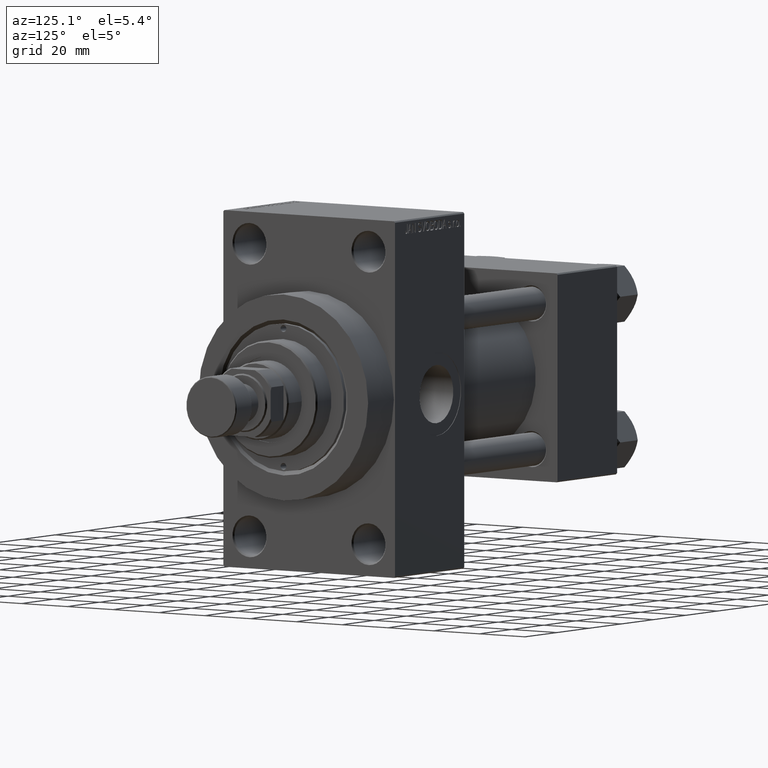
[diagram: clean part render]
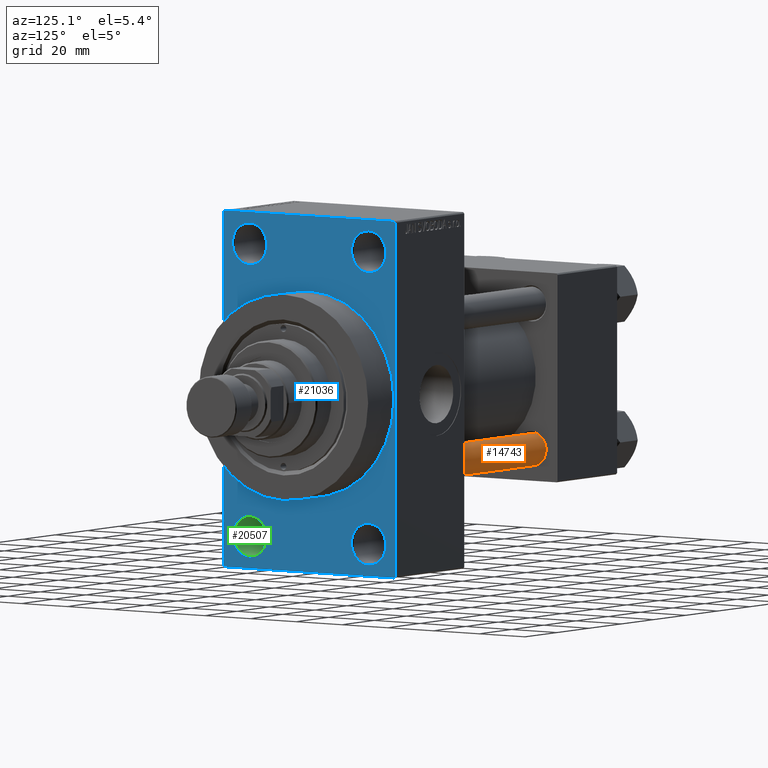
[diagram: same view with three faces highlighted in distinct colors, each labeled with its STEP entity id]
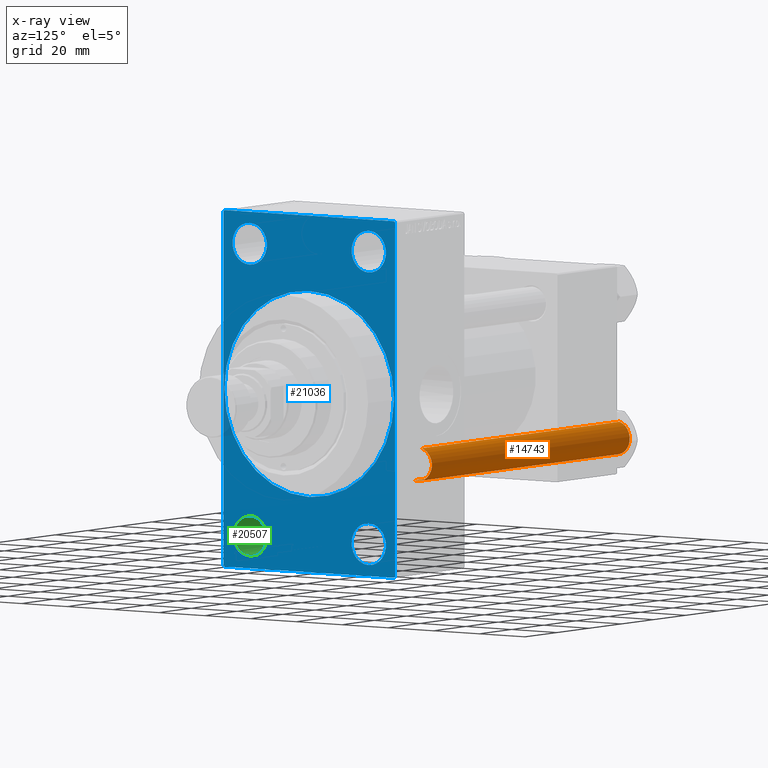
[diagram: x-ray of the same camera — body ghosted, the three highlighted faces saturated]
A machine part, auxiliary view with three faces highlighted in distinct colors.
The next image is the same camera in x-ray (body ghosted, the three faces saturated) — at least one of them is partly hidden behind the body in this view.
Their STEP definitions:

[orange] entity #14743 — the highlighted cylindrical surface (edge-blend (fillet) strip) has radius 6 mm, axis along (1, -0, 0).
#2651 = DIRECTION ( 'NONE',  ( -0.000000000000000000, -0.000000000000000000, -1.000000000000000000 ) ) ;
#3099 = DIRECTION ( 'NONE',  ( 0.000000000000000000, 0.000000000000000000, -1.000000000000000000 ) ) ;
#4222 = ORIENTED_EDGE ( 'NONE', *, *, #5398, .T. ) ;
#5398 = EDGE_CURVE ( 'NONE', #32393, #14427, #6597, .T. ) ;
#5707 = DIRECTION ( 'NONE',  ( -0.000000000000000000, -0.000000000000000000, -1.000000000000000000 ) ) ;
#6521 = LINE ( 'NONE', #10392, #25445 ) ;
#6597 = CIRCLE ( 'NONE', #28241, 6.000000000000000888 ) ;
#8851 = LINE ( 'NONE', #31609, #9837 ) ;
#9225 = AXIS2_PLACEMENT_3D ( 'NONE', #33249, #29840, #33967 ) ;
#9837 = VECTOR ( 'NONE', #5707, 1000.000000000000000 ) ;
#10392 = CARTESIAN_POINT ( 'NONE',  ( 6.000000000000000888, 7.347880794884120722E-16, 124.0000000000000000 ) ) ;
#10416 = EDGE_CURVE ( 'NONE', #32393, #40846, #8851, .T. ) ;
#11178 = DIRECTION ( 'NONE',  ( -0.000000000000000000, -0.000000000000000000, -1.000000000000000000 ) ) ;
#11908 = DIRECTION ( 'NONE',  ( -1.000000000000000000, 0.000000000000000000, 0.000000000000000000 ) ) ;
#12121 = ORIENTED_EDGE ( 'NONE', *, *, #15673, .T. ) ;
#13095 = CIRCLE ( 'NONE', #9225, 6.000000000000000888 ) ;
#13607 = FACE_OUTER_BOUND ( 'NONE', #14537, .T. ) ;
#14329 = CYLINDRICAL_SURFACE ( 'NONE', #33898, 6.000000000000000888 ) ;
#14427 = VERTEX_POINT ( 'NONE', #28691 ) ;
#14537 = EDGE_LOOP ( 'NONE', ( #4222, #39280, #12121, #35155 ) ) ;
#14743 = ADVANCED_FACE ( 'NONE', ( #13607 ), #14329, .T. ) ;
#15673 = EDGE_CURVE ( 'NONE', #45605, #40846, #13095, .T. ) ;
#18332 = CARTESIAN_POINT ( 'NONE',  ( 0.000000000000000000, 0.000000000000000000, 123.5000000000000426 ) ) ;
#21818 = CARTESIAN_POINT ( 'NONE',  ( -6.000000000000000888, 0.000000000000000000, 123.5000000000000426 ) ) ;
#25445 = VECTOR ( 'NONE', #2651, 1000.000000000000000 ) ;
#28241 = AXIS2_PLACEMENT_3D ( 'NONE', #18332, #3099, #33115 ) ;
#28691 = CARTESIAN_POINT ( 'NONE',  ( 6.000000000000000888, 7.347880794884120722E-16, 123.5000000000000426 ) ) ;
#29840 = DIRECTION ( 'NONE',  ( -0.000000000000000000, -0.000000000000000000, 1.000000000000000000 ) ) ;
#30495 = CARTESIAN_POINT ( 'NONE',  ( -6.000000000000000888, 0.000000000000000000, 0.4999999999999865663 ) ) ;
#31609 = CARTESIAN_POINT ( 'NONE',  ( -6.000000000000000888, 0.000000000000000000, 124.0000000000000000 ) ) ;
#32393 = VERTEX_POINT ( 'NONE', #21818 ) ;
#33115 = DIRECTION ( 'NONE',  ( 1.000000000000000000, 0.000000000000000000, 0.000000000000000000 ) ) ;
#33249 = CARTESIAN_POINT ( 'NONE',  ( 0.000000000000000000, 0.000000000000000000, 0.4999999999999865663 ) ) ;
#33898 = AXIS2_PLACEMENT_3D ( 'NONE', #43164, #11178, #11908 ) ;
#33967 = DIRECTION ( 'NONE',  ( 1.000000000000000000, 0.000000000000000000, 0.000000000000000000 ) ) ;
#35155 = ORIENTED_EDGE ( 'NONE', *, *, #10416, .F. ) ;
#35865 = CARTESIAN_POINT ( 'NONE',  ( 6.000000000000000888, 7.347880794884120722E-16, 0.4999999999999865663 ) ) ;
#39280 = ORIENTED_EDGE ( 'NONE', *, *, #39952, .T. ) ;
#39952 = EDGE_CURVE ( 'NONE', #14427, #45605, #6521, .T. ) ;
#40846 = VERTEX_POINT ( 'NONE', #30495 ) ;
#43164 = CARTESIAN_POINT ( 'NONE',  ( 0.000000000000000000, 0.000000000000000000, 124.0000000000000000 ) ) ;
#45605 = VERTEX_POINT ( 'NONE', #35865 ) ;

[blue] entity #21036 — the highlighted planar face has unit normal (-1, 0, 0).
#43 = ORIENTED_EDGE ( 'NONE', *, *, #43870, .F. ) ;
#55 = CIRCLE ( 'NONE', #27113, 7.500000000000007105 ) ;
#160 = CARTESIAN_POINT ( 'NONE',  ( 138.0000000000000000, 37.49999999999999289, -63.50000000000001421 ) ) ;
#870 = CARTESIAN_POINT ( 'NONE',  ( 138.0000000000000000, -25.99999999999999645, -60.00000000000000000 ) ) ;
#897 = DIRECTION ( 'NONE',  ( -0.000000000000000000, -0.7071067811865524577, -0.7071067811865426878 ) ) ;
#1168 = EDGE_LOOP ( 'NONE', ( #29208, #24086 ) ) ;
#1690 = EDGE_CURVE ( 'NONE', #21101, #30888, #15156, .T. ) ;
#1776 = ORIENTED_EDGE ( 'NONE', *, *, #35301, .T. ) ;
#2322 = CARTESIAN_POINT ( 'NONE',  ( 138.0000000000000000, 26.00000000000000000, 52.49999999999999289 ) ) ;
#2425 = VERTEX_POINT ( 'NONE', #43265 ) ;
#2658 = CARTESIAN_POINT ( 'NONE',  ( 138.0000000000000000, 26.00000000000000000, -44.99999999999998579 ) ) ;
#2905 = DIRECTION ( 'NONE',  ( 0.000000000000000000, -1.000000000000000000, -1.850371707708594563E-16 ) ) ;
#2966 = VERTEX_POINT ( 'NONE', #13111 ) ;
#3213 = VECTOR ( 'NONE', #24102, 1000.000000000000000 ) ;
#4489 = DIRECTION ( 'NONE',  ( -1.000000000000000000, 0.000000000000000000, -0.000000000000000000 ) ) ;
#4606 = DIRECTION ( 'NONE',  ( -1.000000000000000000, 0.000000000000000000, -0.000000000000000000 ) ) ;
#4648 = LINE ( 'NONE', #8270, #11572 ) ;
#5148 = VECTOR ( 'NONE', #2905, 1000.000000000000000 ) ;
#6224 = AXIS2_PLACEMENT_3D ( 'NONE', #18016, #10266, #47335 ) ;
#6396 = FACE_BOUND ( 'NONE', #1168, .T. ) ;
#6658 = DIRECTION ( 'NONE',  ( -1.000000000000000000, 0.000000000000000000, -0.000000000000000000 ) ) ;
#6703 = ORIENTED_EDGE ( 'NONE', *, *, #8942, .F. ) ;
#6828 = AXIS2_PLACEMENT_3D ( 'NONE', #9573, #17078, #32103 ) ;
#7229 = ORIENTED_EDGE ( 'NONE', *, *, #41435, .T. ) ;
#7467 = AXIS2_PLACEMENT_3D ( 'NONE', #36324, #26136, #37051 ) ;
#8270 = CARTESIAN_POINT ( 'NONE',  ( 138.0000000000000000, -37.49999999999999289, 63.99999999999997158 ) ) ;
#8298 = VERTEX_POINT ( 'NONE', #23571 ) ;
#8473 = ORIENTED_EDGE ( 'NONE', *, *, #12802, .T. ) ;
#8667 = ORIENTED_EDGE ( 'NONE', *, *, #33722, .T. ) ;
#8814 = EDGE_CURVE ( 'NONE', #47147, #31787, #36081, .T. ) ;
#8942 = EDGE_CURVE ( 'NONE', #22070, #14919, #10568, .T. ) ;
#9419 = DIRECTION ( 'NONE',  ( 0.000000000000000000, 0.000000000000000000, 1.000000000000000000 ) ) ;
#9573 = CARTESIAN_POINT ( 'NONE',  ( 138.0000000000000000, -25.99999999999999645, 52.50000000000000000 ) ) ;
#9894 = DIRECTION ( 'NONE',  ( -1.000000000000000000, 0.000000000000000000, -0.000000000000000000 ) ) ;
#10182 = LINE ( 'NONE', #24958, #13689 ) ;
#10266 = DIRECTION ( 'NONE',  ( -1.000000000000000000, 0.000000000000000000, -0.000000000000000000 ) ) ;
#10568 = CIRCLE ( 'NONE', #7467, 37.00000000000000000 ) ;
#10675 = CARTESIAN_POINT ( 'NONE',  ( 138.0000000000000000, -37.49999999999999289, 63.49999999999994316 ) ) ;
#10746 = VERTEX_POINT ( 'NONE', #2658 ) ;
#10964 = ORIENTED_EDGE ( 'NONE', *, *, #35569, .T. ) ;
#10982 = PLANE ( 'NONE',  #6224 ) ;
#11440 = ORIENTED_EDGE ( 'NONE', *, *, #26428, .T. ) ;
#11523 = DIRECTION ( 'NONE',  ( 0.000000000000000000, -0.7071067811865672237, 0.7071067811865279218 ) ) ;
#11572 = VECTOR ( 'NONE', #37596, 1000.000000000000000 ) ;
#12000 = LINE ( 'NONE', #23138, #3213 ) ;
#12239 = CIRCLE ( 'NONE', #6828, 7.500000000000007105 ) ;
#12622 = DIRECTION ( 'NONE',  ( -1.000000000000000000, 0.000000000000000000, -0.000000000000000000 ) ) ;
#12781 = DIRECTION ( 'NONE',  ( 0.000000000000000000, 0.000000000000000000, 1.000000000000000000 ) ) ;
#12802 = EDGE_CURVE ( 'NONE', #37510, #47925, #42423, .T. ) ;
#12911 = CARTESIAN_POINT ( 'NONE',  ( 138.0000000000000000, -25.99999999999999645, -44.99999999999998579 ) ) ;
#13060 = EDGE_CURVE ( 'NONE', #10746, #17246, #14586, .T. ) ;
#13111 = CARTESIAN_POINT ( 'NONE',  ( 138.0000000000000000, -25.99999999999999645, 60.00000000000000711 ) ) ;
#13161 = VECTOR ( 'NONE', #38341, 1000.000000000000000 ) ;
#13250 = EDGE_CURVE ( 'NONE', #14673, #39648, #25820, .T. ) ;
#13355 = LINE ( 'NONE', #31772, #13161 ) ;
#13689 = VECTOR ( 'NONE', #39751, 999.9999999999998863 ) ;
#13967 = AXIS2_PLACEMENT_3D ( 'NONE', #41658, #23248, #9419 ) ;
#14393 = CARTESIAN_POINT ( 'NONE',  ( 138.0000000000000000, 26.00000000000000000, 44.99999999999998579 ) ) ;
#14586 = CIRCLE ( 'NONE', #33160, 7.500000000000007105 ) ;
#14673 = VERTEX_POINT ( 'NONE', #21113 ) ;
#14919 = VERTEX_POINT ( 'NONE', #38539 ) ;
#15156 = LINE ( 'NONE', #19495, #46695 ) ;
#15312 = VERTEX_POINT ( 'NONE', #36692 ) ;
#16443 = EDGE_CURVE ( 'NONE', #2966, #2425, #12239, .T. ) ;
#16450 = AXIS2_PLACEMENT_3D ( 'NONE', #32675, #9894, #47685 ) ;
#16596 = VERTEX_POINT ( 'NONE', #14393 ) ;
#17078 = DIRECTION ( 'NONE',  ( -1.000000000000000000, 0.000000000000000000, -0.000000000000000000 ) ) ;
#17086 = DIRECTION ( 'NONE',  ( 0.000000000000000000, 0.000000000000000000, 1.000000000000000000 ) ) ;
#17203 = DIRECTION ( 'NONE',  ( 0.000000000000000000, 0.000000000000000000, 1.000000000000000000 ) ) ;
#17246 = VERTEX_POINT ( 'NONE', #40097 ) ;
#18016 = CARTESIAN_POINT ( 'NONE',  ( 138.0000000000000000, 0.000000000000000000, 0.000000000000000000 ) ) ;
#18806 = CARTESIAN_POINT ( 'NONE',  ( 138.0000000000000000, -37.49999999999999289, 63.49999999999994316 ) ) ;
#19029 = ORIENTED_EDGE ( 'NONE', *, *, #13250, .T. ) ;
#19127 = CIRCLE ( 'NONE', #43887, 7.500000000000007105 ) ;
#19483 = DIRECTION ( 'NONE',  ( 0.000000000000000000, 0.000000000000000000, 1.000000000000000000 ) ) ;
#19495 = CARTESIAN_POINT ( 'NONE',  ( 138.0000000000000000, 36.99999999999997158, 63.99999999999998579 ) ) ;
#19526 = CIRCLE ( 'NONE', #16450, 7.500000000000007105 ) ;
#20096 = CARTESIAN_POINT ( 'NONE',  ( 138.0000000000000000, -36.99999999999993605, -64.00000000000001421 ) ) ;
#20444 = EDGE_CURVE ( 'NONE', #30888, #14673, #13355, .T. ) ;
#20750 = CARTESIAN_POINT ( 'NONE',  ( 138.0000000000000000, 26.00000000000000000, -52.49999999999999289 ) ) ;
#21036 = ADVANCED_FACE ( 'NONE', ( #21643, #36430, #6396, #21162, #47805, #43700 ), #10982, .F. ) ;
#21101 = VERTEX_POINT ( 'NONE', #22369 ) ;
#21113 = CARTESIAN_POINT ( 'NONE',  ( 138.0000000000000000, -36.99999999999995737, 63.99999999999997158 ) ) ;
#21162 = FACE_BOUND ( 'NONE', #43622, .T. ) ;
#21643 = FACE_BOUND ( 'NONE', #24378, .T. ) ;
#22070 = VERTEX_POINT ( 'NONE', #23589 ) ;
#22177 = CARTESIAN_POINT ( 'NONE',  ( 138.0000000000000000, 36.99999999999997158, 63.99999999999998579 ) ) ;
#22295 = EDGE_LOOP ( 'NONE', ( #7229, #1776, #24485, #34811, #45324, #41127, #29786, #19029 ) ) ;
#22369 = CARTESIAN_POINT ( 'NONE',  ( 138.0000000000000000, 37.50000000000000000, 63.49999999999998579 ) ) ;
#22378 = AXIS2_PLACEMENT_3D ( 'NONE', #23872, #24342, #38425 ) ;
#22616 = ORIENTED_EDGE ( 'NONE', *, *, #16443, .T. ) ;
#23138 = CARTESIAN_POINT ( 'NONE',  ( 138.0000000000000000, 37.50000000000000000, 63.99999999999998579 ) ) ;
#23248 = DIRECTION ( 'NONE',  ( -1.000000000000000000, 0.000000000000000000, -0.000000000000000000 ) ) ;
#23571 = CARTESIAN_POINT ( 'NONE',  ( 138.0000000000000000, 37.49999999999999289, -63.50000000000001421 ) ) ;
#23589 = CARTESIAN_POINT ( 'NONE',  ( 138.0000000000000000, 4.531193156845206793E-15, -37.00000000000000000 ) ) ;
#23872 = CARTESIAN_POINT ( 'NONE',  ( 138.0000000000000000, 0.000000000000000000, 0.000000000000000000 ) ) ;
#23981 = EDGE_CURVE ( 'NONE', #21101, #8298, #12000, .T. ) ;
#24086 = ORIENTED_EDGE ( 'NONE', *, *, #13060, .T. ) ;
#24102 = DIRECTION ( 'NONE',  ( 0.000000000000000000, -5.421010862427522170E-17, -1.000000000000000000 ) ) ;
#24342 = DIRECTION ( 'NONE',  ( 1.000000000000000000, 0.000000000000000000, 0.000000000000000000 ) ) ;
#24378 = EDGE_LOOP ( 'NONE', ( #10964, #22616 ) ) ;
#24485 = ORIENTED_EDGE ( 'NONE', *, *, #8814, .F. ) ;
#24958 = CARTESIAN_POINT ( 'NONE',  ( 138.0000000000000000, -36.99999999999993605, -64.00000000000001421 ) ) ;
#25820 = LINE ( 'NONE', #18806, #26170 ) ;
#26063 = EDGE_CURVE ( 'NONE', #47147, #8298, #29693, .T. ) ;
#26136 = DIRECTION ( 'NONE',  ( 1.000000000000000000, 0.000000000000000000, 0.000000000000000000 ) ) ;
#26170 = VECTOR ( 'NONE', #897, 1000.000000000000000 ) ;
#26394 = CARTESIAN_POINT ( 'NONE',  ( 138.0000000000000000, 26.00000000000000000, 60.00000000000000000 ) ) ;
#26428 = EDGE_CURVE ( 'NONE', #44602, #16596, #19526, .T. ) ;
#27113 = AXIS2_PLACEMENT_3D ( 'NONE', #37682, #4489, #19483 ) ;
#27585 = CARTESIAN_POINT ( 'NONE',  ( 138.0000000000000000, -25.99999999999999645, 52.50000000000000000 ) ) ;
#28837 = ORIENTED_EDGE ( 'NONE', *, *, #46924, .T. ) ;
#29208 = ORIENTED_EDGE ( 'NONE', *, *, #46629, .T. ) ;
#29446 = DIRECTION ( 'NONE',  ( -0.000000000000000000, 0.7071067811865573427, 0.7071067811865378028 ) ) ;
#29693 = LINE ( 'NONE', #160, #32667 ) ;
#29786 = ORIENTED_EDGE ( 'NONE', *, *, #20444, .T. ) ;
#30750 = DIRECTION ( 'NONE',  ( 0.000000000000000000, 0.000000000000000000, 1.000000000000000000 ) ) ;
#30888 = VERTEX_POINT ( 'NONE', #22177 ) ;
#31772 = CARTESIAN_POINT ( 'NONE',  ( 138.0000000000000000, 37.50000000000000000, 63.99999999999998579 ) ) ;
#31787 = VERTEX_POINT ( 'NONE', #20096 ) ;
#32103 = DIRECTION ( 'NONE',  ( 0.000000000000000000, 0.000000000000000000, 1.000000000000000000 ) ) ;
#32667 = VECTOR ( 'NONE', #29446, 1000.000000000000000 ) ;
#32675 = CARTESIAN_POINT ( 'NONE',  ( 138.0000000000000000, 26.00000000000000000, 52.49999999999999289 ) ) ;
#33160 = AXIS2_PLACEMENT_3D ( 'NONE', #20750, #39169, #12781 ) ;
#33722 = EDGE_CURVE ( 'NONE', #16596, #44602, #41519, .T. ) ;
#34123 = CIRCLE ( 'NONE', #13967, 7.500000000000007105 ) ;
#34811 = ORIENTED_EDGE ( 'NONE', *, *, #26063, .T. ) ;
#35301 = EDGE_CURVE ( 'NONE', #15312, #31787, #10182, .T. ) ;
#35554 = CIRCLE ( 'NONE', #22378, 37.00000000000000000 ) ;
#35569 = EDGE_CURVE ( 'NONE', #2425, #2966, #19127, .T. ) ;
#35620 = CARTESIAN_POINT ( 'NONE',  ( 138.0000000000000000, -25.99999999999999645, -52.49999999999999289 ) ) ;
#36081 = LINE ( 'NONE', #46512, #5148 ) ;
#36324 = CARTESIAN_POINT ( 'NONE',  ( 138.0000000000000000, 0.000000000000000000, 0.000000000000000000 ) ) ;
#36430 = FACE_BOUND ( 'NONE', #43404, .T. ) ;
#36692 = CARTESIAN_POINT ( 'NONE',  ( 138.0000000000000000, -37.49999999999999289, -63.49999999999997158 ) ) ;
#36838 = AXIS2_PLACEMENT_3D ( 'NONE', #2322, #6658, #17086 ) ;
#37051 = DIRECTION ( 'NONE',  ( 0.000000000000000000, 0.000000000000000000, -1.000000000000000000 ) ) ;
#37510 = VERTEX_POINT ( 'NONE', #870 ) ;
#37596 = DIRECTION ( 'NONE',  ( 0.000000000000000000, 0.000000000000000000, -1.000000000000000000 ) ) ;
#37682 = CARTESIAN_POINT ( 'NONE',  ( 138.0000000000000000, 26.00000000000000000, -52.49999999999999289 ) ) ;
#37804 = AXIS2_PLACEMENT_3D ( 'NONE', #35620, #12622, #17203 ) ;
#38341 = DIRECTION ( 'NONE',  ( 0.000000000000000000, -1.000000000000000000, -1.850371707708594563E-16 ) ) ;
#38425 = DIRECTION ( 'NONE',  ( 0.000000000000000000, 0.000000000000000000, -1.000000000000000000 ) ) ;
#38539 = CARTESIAN_POINT ( 'NONE',  ( 138.0000000000000000, 0.000000000000000000, 37.00000000000000000 ) ) ;
#38789 = EDGE_LOOP ( 'NONE', ( #43, #6703 ) ) ;
#39169 = DIRECTION ( 'NONE',  ( -1.000000000000000000, 0.000000000000000000, -0.000000000000000000 ) ) ;
#39648 = VERTEX_POINT ( 'NONE', #10675 ) ;
#39751 = DIRECTION ( 'NONE',  ( 0.000000000000000000, 0.7071067811865574537, -0.7071067811865376918 ) ) ;
#40097 = CARTESIAN_POINT ( 'NONE',  ( 138.0000000000000000, 26.00000000000000000, -60.00000000000000000 ) ) ;
#41127 = ORIENTED_EDGE ( 'NONE', *, *, #1690, .T. ) ;
#41435 = EDGE_CURVE ( 'NONE', #39648, #15312, #4648, .T. ) ;
#41519 = CIRCLE ( 'NONE', #36838, 7.500000000000007105 ) ;
#41658 = CARTESIAN_POINT ( 'NONE',  ( 138.0000000000000000, -25.99999999999999645, -52.49999999999999289 ) ) ;
#42423 = CIRCLE ( 'NONE', #37804, 7.500000000000007105 ) ;
#43265 = CARTESIAN_POINT ( 'NONE',  ( 138.0000000000000000, -25.99999999999999645, 44.99999999999999289 ) ) ;
#43404 = EDGE_LOOP ( 'NONE', ( #8473, #28837 ) ) ;
#43622 = EDGE_LOOP ( 'NONE', ( #8667, #11440 ) ) ;
#43700 = FACE_OUTER_BOUND ( 'NONE', #22295, .T. ) ;
#43870 = EDGE_CURVE ( 'NONE', #14919, #22070, #35554, .T. ) ;
#43887 = AXIS2_PLACEMENT_3D ( 'NONE', #27585, #4606, #30750 ) ;
#44041 = CARTESIAN_POINT ( 'NONE',  ( 138.0000000000000000, 36.99999999999999289, -64.00000000000000000 ) ) ;
#44602 = VERTEX_POINT ( 'NONE', #26394 ) ;
#45324 = ORIENTED_EDGE ( 'NONE', *, *, #23981, .F. ) ;
#46512 = CARTESIAN_POINT ( 'NONE',  ( 138.0000000000000000, 37.49999999999999289, -64.00000000000000000 ) ) ;
#46629 = EDGE_CURVE ( 'NONE', #17246, #10746, #55, .T. ) ;
#46695 = VECTOR ( 'NONE', #11523, 1000.000000000000000 ) ;
#46924 = EDGE_CURVE ( 'NONE', #47925, #37510, #34123, .T. ) ;
#47147 = VERTEX_POINT ( 'NONE', #44041 ) ;
#47335 = DIRECTION ( 'NONE',  ( -0.000000000000000000, 0.000000000000000000, 1.000000000000000000 ) ) ;
#47685 = DIRECTION ( 'NONE',  ( 0.000000000000000000, 0.000000000000000000, 1.000000000000000000 ) ) ;
#47805 = FACE_BOUND ( 'NONE', #38789, .T. ) ;
#47925 = VERTEX_POINT ( 'NONE', #12911 ) ;

[green] entity #20507 — the highlighted cylindrical surface (edge-blend (fillet) strip) has radius 7 mm, axis along (1, 0, 0).
#770 = EDGE_CURVE ( 'NONE', #10732, #2051, #11037, .T. ) ;
#779 = CARTESIAN_POINT ( 'NONE',  ( 95.49999999999997158, -25.99999999999999645, -52.49999999999999289 ) ) ;
#2051 = VERTEX_POINT ( 'NONE', #25372 ) ;
#2946 = FACE_OUTER_BOUND ( 'NONE', #40303, .T. ) ;
#3877 = AXIS2_PLACEMENT_3D ( 'NONE', #17705, #13589, #47738 ) ;
#8559 = DIRECTION ( 'NONE',  ( 0.000000000000000000, 0.000000000000000000, 1.000000000000000000 ) ) ;
#9838 = ORIENTED_EDGE ( 'NONE', *, *, #43520, .T. ) ;
#10732 = VERTEX_POINT ( 'NONE', #24209 ) ;
#10743 = ORIENTED_EDGE ( 'NONE', *, *, #770, .T. ) ;
#11037 = CIRCLE ( 'NONE', #47429, 6.999999999999999112 ) ;
#11567 = AXIS2_PLACEMENT_3D ( 'NONE', #779, #23511, #41927 ) ;
#12131 = ORIENTED_EDGE ( 'NONE', *, *, #14539, .F. ) ;
#12992 = VECTOR ( 'NONE', #30608, 1000.000000000000000 ) ;
#13589 = DIRECTION ( 'NONE',  ( 1.000000000000000000, -0.000000000000000000, -0.000000000000000000 ) ) ;
#14539 = EDGE_CURVE ( 'NONE', #44230, #2051, #34255, .T. ) ;
#15834 = CARTESIAN_POINT ( 'NONE',  ( 75.20101012677666574, -25.99999999999999645, -59.49999999999999289 ) ) ;
#17196 = CARTESIAN_POINT ( 'NONE',  ( 95.49999999999997158, -25.99999999999999645, -45.49999999999999289 ) ) ;
#17525 = DIRECTION ( 'NONE',  ( 1.000000000000000000, -0.000000000000000000, -0.000000000000000000 ) ) ;
#17705 = CARTESIAN_POINT ( 'NONE',  ( 75.20101012677666574, -25.99999999999999645, -52.49999999999999289 ) ) ;
#17771 = LINE ( 'NONE', #29568, #34059 ) ;
#20507 = ADVANCED_FACE ( 'NONE', ( #2946 ), #21579, .F. ) ;
#20981 = ORIENTED_EDGE ( 'NONE', *, *, #42074, .T. ) ;
#21579 = CYLINDRICAL_SURFACE ( 'NONE', #3877, 6.999999999999999112 ) ;
#23511 = DIRECTION ( 'NONE',  ( -1.000000000000000000, -0.000000000000000000, -0.000000000000000000 ) ) ;
#24209 = CARTESIAN_POINT ( 'NONE',  ( 137.5000000000000000, -25.99999999999999645, -45.49999999999999289 ) ) ;
#25372 = CARTESIAN_POINT ( 'NONE',  ( 137.5000000000000000, -25.99999999999999645, -59.49999999999999289 ) ) ;
#26506 = CARTESIAN_POINT ( 'NONE',  ( 137.5000000000000000, -25.99999999999999645, -52.49999999999999289 ) ) ;
#27204 = DIRECTION ( 'NONE',  ( 1.000000000000000000, 0.000000000000000000, 0.000000000000000000 ) ) ;
#29568 = CARTESIAN_POINT ( 'NONE',  ( 75.20101012677666574, -25.99999999999999645, -45.49999999999999289 ) ) ;
#30608 = DIRECTION ( 'NONE',  ( 1.000000000000000000, -0.000000000000000000, -0.000000000000000000 ) ) ;
#34059 = VECTOR ( 'NONE', #17525, 1000.000000000000000 ) ;
#34255 = LINE ( 'NONE', #15834, #12992 ) ;
#39386 = CIRCLE ( 'NONE', #11567, 6.999999999999999112 ) ;
#40303 = EDGE_LOOP ( 'NONE', ( #9838, #20981, #10743, #12131 ) ) ;
#41611 = VERTEX_POINT ( 'NONE', #17196 ) ;
#41927 = DIRECTION ( 'NONE',  ( 0.000000000000000000, 0.000000000000000000, 1.000000000000000000 ) ) ;
#41995 = CARTESIAN_POINT ( 'NONE',  ( 95.49999999999997158, -25.99999999999999645, -59.49999999999999289 ) ) ;
#42074 = EDGE_CURVE ( 'NONE', #41611, #10732, #17771, .T. ) ;
#43520 = EDGE_CURVE ( 'NONE', #44230, #41611, #39386, .T. ) ;
#44230 = VERTEX_POINT ( 'NONE', #41995 ) ;
#47429 = AXIS2_PLACEMENT_3D ( 'NONE', #26506, #27204, #8559 ) ;
#47738 = DIRECTION ( 'NONE',  ( 0.000000000000000000, 0.000000000000000000, -1.000000000000000000 ) ) ;